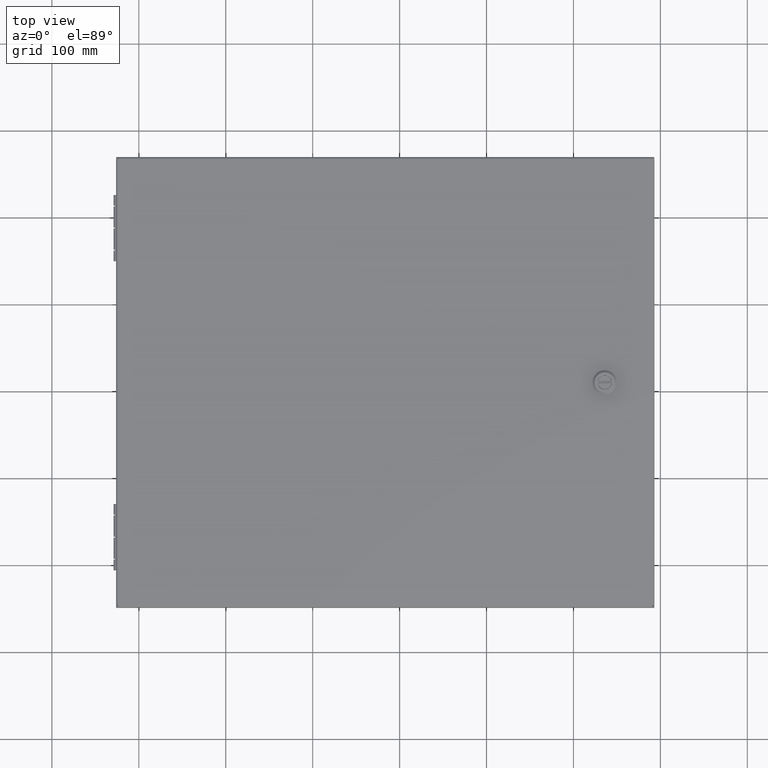
[diagram: clean part render]
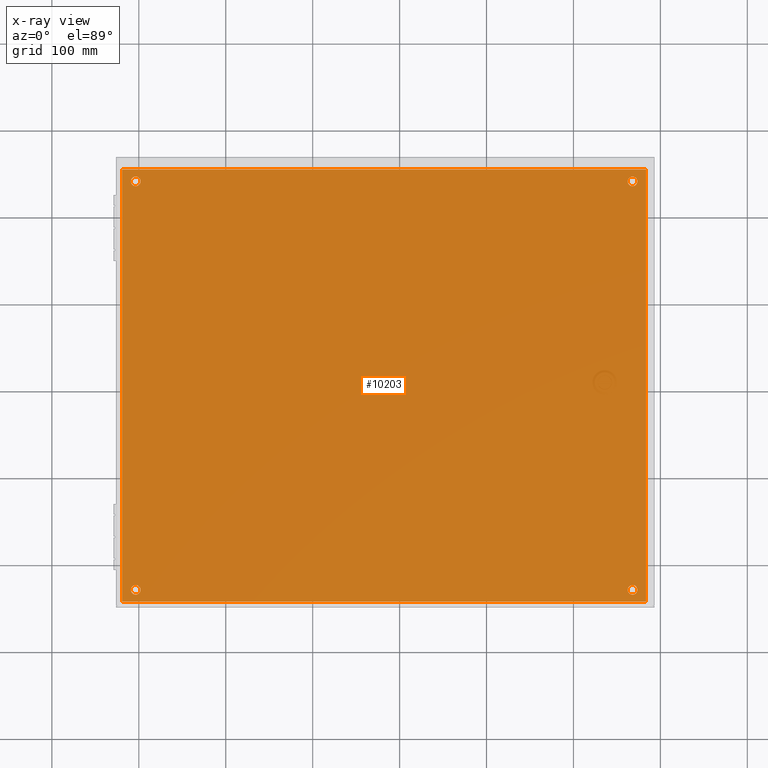
[diagram: x-ray — body ghosted, one internal face saturated and labeled with its STEP entity id]
A machine part, top view, then the same camera in x-ray: the body is ghosted and one INTERNAL B-rep face — a face not visible from any outside direction — is saturated and labeled: STEP entity #10203.
In plain terms, the highlighted planar face has unit normal (0, 0, 1).
Its self-contained STEP definition (entity closure, byte-faithful):
#429=LINE('',#15062,#1358);
#431=LINE('',#15066,#1360);
#434=LINE('',#15072,#1363);
#437=LINE('',#15078,#1366);
#440=LINE('',#15093,#1369);
#445=LINE('',#15106,#1374);
#446=LINE('',#15108,#1375);
#448=LINE('',#15111,#1377);
#1358=VECTOR('',#12046,23.4202216703159);
#1360=VECTOR('',#12052,23.4202216703159);
#1363=VECTOR('',#12057,0.153389164842068);
#1366=VECTOR('',#12062,0.153389164842071);
#1369=VECTOR('',#12083,19.579);
#1374=VECTOR('',#12102,19.579);
#1375=VECTOR('',#12105,0.153389164842068);
#1377=VECTOR('',#12109,0.153389164842074);
#2225=PLANE('',#10854);
#2545=FACE_BOUND('',#3310,.T.);
#2546=FACE_BOUND('',#3311,.T.);
#2547=FACE_BOUND('',#3312,.T.);
#2548=FACE_BOUND('',#3313,.T.);
#2694=FACE_OUTER_BOUND('',#3309,.T.);
#3309=EDGE_LOOP('',(#6897,#6898,#6899,#6900,#6901,#6902,#6903,#6904));
#3310=EDGE_LOOP('',(#6905));
#3311=EDGE_LOOP('',(#6906));
#3312=EDGE_LOOP('',(#6907));
#3313=EDGE_LOOP('',(#6908));
#3952=CIRCLE('',#10806,0.21875);
#3954=CIRCLE('',#10809,0.21875);
#3956=CIRCLE('',#10812,0.21875);
#3958=CIRCLE('',#10815,0.21875);
#4340=VERTEX_POINT('',#14803);
#4343=VERTEX_POINT('',#14810);
#4348=VERTEX_POINT('',#14821);
#4351=VERTEX_POINT('',#14828);
#4391=VERTEX_POINT('',#14954);
#4393=VERTEX_POINT('',#14959);
#4395=VERTEX_POINT('',#14964);
#4397=VERTEX_POINT('',#14969);
#4430=VERTEX_POINT('',#15070);
#4432=VERTEX_POINT('',#15076);
#4434=VERTEX_POINT('',#15087);
#4436=VERTEX_POINT('',#15101);
#5307=EDGE_CURVE('',#4391,#4391,#3952,.T.);
#5309=EDGE_CURVE('',#4393,#4393,#3954,.T.);
#5311=EDGE_CURVE('',#4395,#4395,#3956,.T.);
#5313=EDGE_CURVE('',#4397,#4397,#3958,.T.);
#5358=EDGE_CURVE('',#4343,#4340,#429,.T.);
#5360=EDGE_CURVE('',#4351,#4348,#431,.T.);
#5363=EDGE_CURVE('',#4340,#4430,#434,.T.);
#5366=EDGE_CURVE('',#4348,#4432,#437,.T.);
#5374=EDGE_CURVE('',#4432,#4434,#440,.T.);
#5382=EDGE_CURVE('',#4430,#4436,#445,.T.);
#5383=EDGE_CURVE('',#4434,#4343,#446,.T.);
#5385=EDGE_CURVE('',#4436,#4351,#448,.T.);
#6897=ORIENTED_EDGE('',*,*,#5383,.T.);
#6898=ORIENTED_EDGE('',*,*,#5358,.T.);
#6899=ORIENTED_EDGE('',*,*,#5363,.T.);
#6900=ORIENTED_EDGE('',*,*,#5382,.T.);
#6901=ORIENTED_EDGE('',*,*,#5385,.T.);
#6902=ORIENTED_EDGE('',*,*,#5360,.T.);
#6903=ORIENTED_EDGE('',*,*,#5366,.T.);
#6904=ORIENTED_EDGE('',*,*,#5374,.T.);
#6905=ORIENTED_EDGE('',*,*,#5307,.T.);
#6906=ORIENTED_EDGE('',*,*,#5309,.T.);
#6907=ORIENTED_EDGE('',*,*,#5311,.T.);
#6908=ORIENTED_EDGE('',*,*,#5313,.T.);
#10203=ADVANCED_FACE('',(#2694,#2545,#2546,#2547,#2548),#2225,.T.);
#10806=AXIS2_PLACEMENT_3D('',#14955,#11949,#11950);
#10809=AXIS2_PLACEMENT_3D('',#14960,#11955,#11956);
#10812=AXIS2_PLACEMENT_3D('',#14965,#11961,#11962);
#10815=AXIS2_PLACEMENT_3D('',#14970,#11967,#11968);
#10854=AXIS2_PLACEMENT_3D('',#15110,#12107,#12108);
#11949=DIRECTION('center_axis',(0.,0.,-1.));
#11950=DIRECTION('ref_axis',(1.,0.,0.));
#11955=DIRECTION('center_axis',(0.,0.,-1.));
#11956=DIRECTION('ref_axis',(1.,0.,0.));
#11961=DIRECTION('center_axis',(0.,0.,-1.));
#11962=DIRECTION('ref_axis',(1.,0.,0.));
#11967=DIRECTION('center_axis',(0.,0.,-1.));
#11968=DIRECTION('ref_axis',(1.,0.,0.));
#12046=DIRECTION('',(1.,1.16670657109405E-16,0.));
#12052=DIRECTION('',(-1.,-2.3334131421881E-16,0.));
#12057=DIRECTION('',(1.,1.16670657109405E-16,0.));
#12062=DIRECTION('',(-1.,-2.3334131421881E-16,0.));
#12083=DIRECTION('',(0.,-1.,0.));
#12102=DIRECTION('',(0.,1.,0.));
#12105=DIRECTION('',(1.,1.16670657109405E-16,0.));
#12107=DIRECTION('center_axis',(0.,0.,1.));
#12108=DIRECTION('ref_axis',(1.,0.,0.));
#12109=DIRECTION('',(-1.,-2.3334131421881E-16,0.));
#14803=CARTESIAN_POINT('',(11.7101108351579,-9.7895,0.074));
#14810=CARTESIAN_POINT('',(-11.7101108351579,-9.7895,0.074));
#14821=CARTESIAN_POINT('',(-11.7101108351579,9.78949999999967,0.074));
#14828=CARTESIAN_POINT('',(11.7101108351579,9.78949999999968,0.074));
#14954=CARTESIAN_POINT('',(11.03125,-9.24999999999998,0.074));
#14955=CARTESIAN_POINT('Origin',(11.25,-9.24999999999998,0.074));
#14959=CARTESIAN_POINT('',(11.03125,9.24999999999999,0.074));
#14960=CARTESIAN_POINT('Origin',(11.25,9.24999999999999,0.074));
#14964=CARTESIAN_POINT('',(-11.46875,9.25,0.074));
#14965=CARTESIAN_POINT('Origin',(-11.25,9.25,0.074));
#14969=CARTESIAN_POINT('',(-11.46875,-9.25000000000001,0.074));
#14970=CARTESIAN_POINT('Origin',(-11.25,-9.25000000000001,0.074));
#15062=CARTESIAN_POINT('',(5.93175,-9.7895,0.074));
#15066=CARTESIAN_POINT('',(-5.93175,9.7895,0.074));
#15070=CARTESIAN_POINT('',(11.8635,-9.7895,0.074));
#15072=CARTESIAN_POINT('',(5.93175,-9.7895,0.074));
#15076=CARTESIAN_POINT('',(-11.8635,9.78949999999999,0.074));
#15078=CARTESIAN_POINT('',(-5.93175,9.7895,0.074));
#15087=CARTESIAN_POINT('',(-11.8635,-9.7895,0.074));
#15093=CARTESIAN_POINT('',(-11.8635,-4.926,0.074));
#15101=CARTESIAN_POINT('',(11.8635,9.7895,0.074));
#15106=CARTESIAN_POINT('',(11.8635,4.926,0.074));
#15108=CARTESIAN_POINT('',(5.93175,-9.7895,0.074));
#15110=CARTESIAN_POINT('Origin',(1.3987061727561E-15,-2.79741234551221E-15,
0.074));
#15111=CARTESIAN_POINT('',(-5.93175,9.7895,0.074));